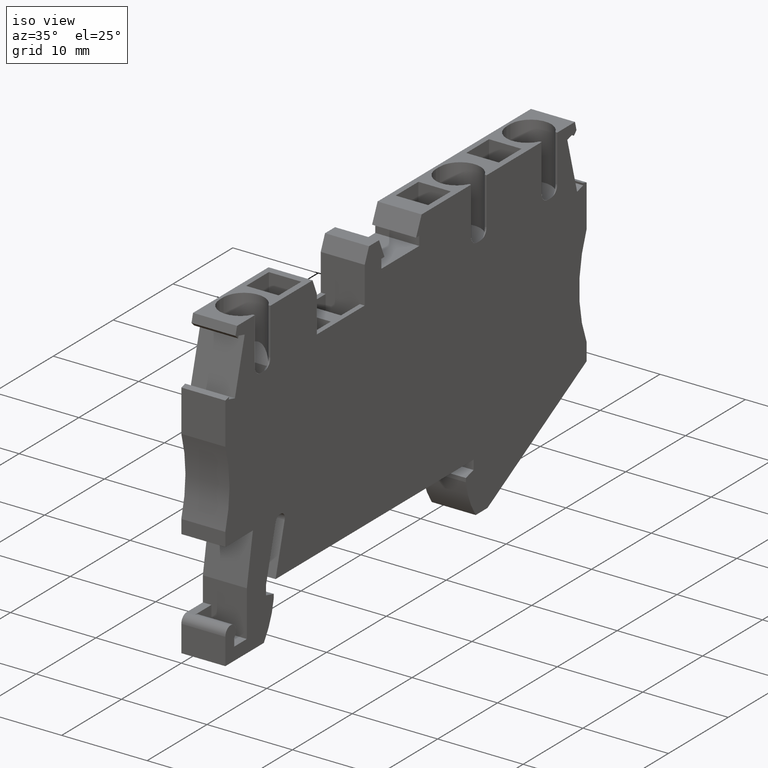
[diagram: clean part render]
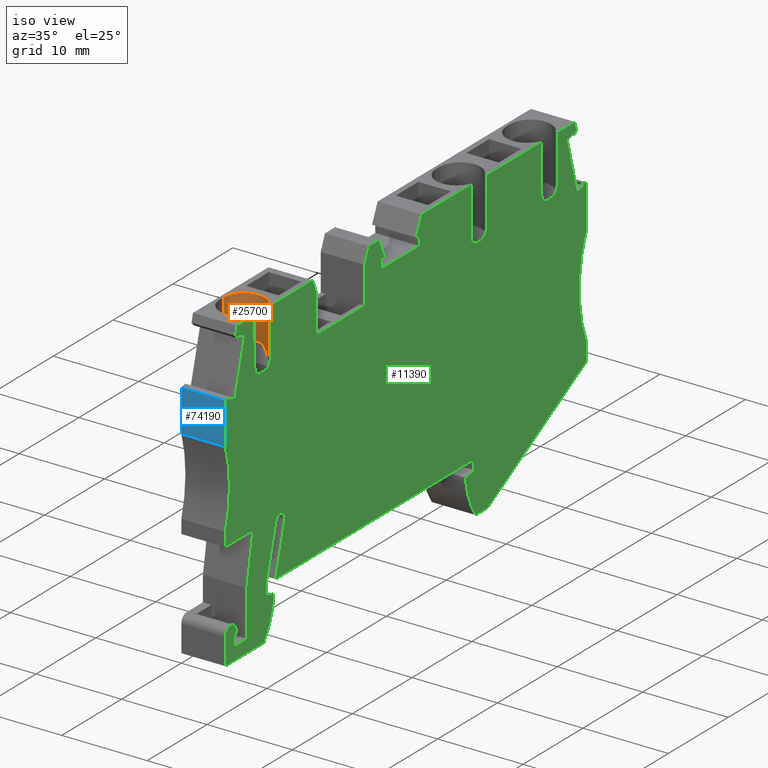
[diagram: same view with three faces highlighted in distinct colors, each labeled with its STEP entity id]
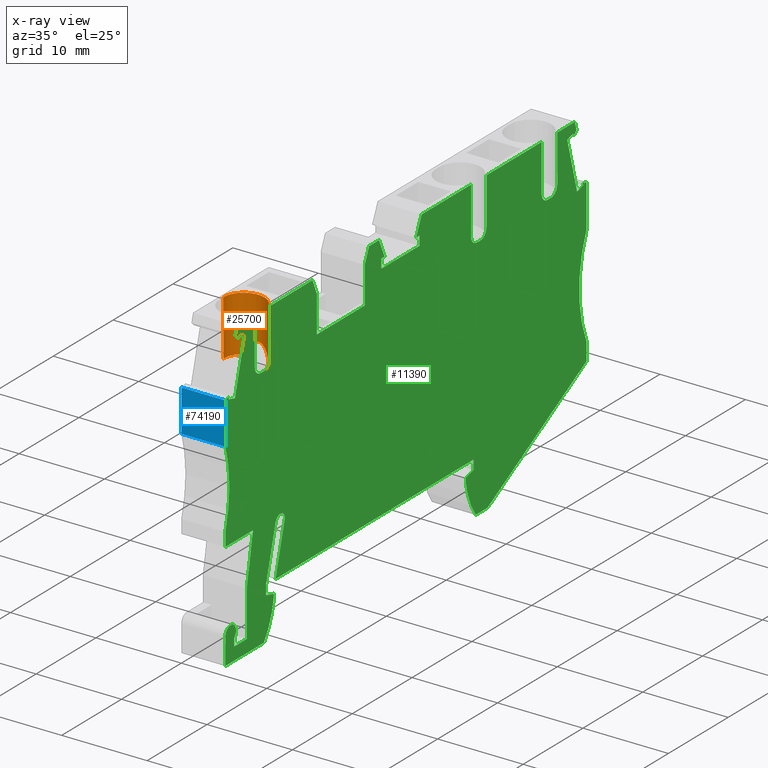
[diagram: x-ray of the same camera — body ghosted, the three highlighted faces saturated]
A machine part, iso view with three faces highlighted in distinct colors.
The next image is the same camera in x-ray (body ghosted, the three faces saturated) — at least one of them is partly hidden behind the body in this view.
Their STEP definitions:

[orange] entity #25700 — the highlighted cylindrical surface (edge-blend (fillet) strip) has radius 2.4 mm, axis along (0, -0, -1).
#5390=CARTESIAN_POINT('',(-15.8428327783273,-15.649999999976,
53.6699999999864));
#5400=VERTEX_POINT('',#5390);
#22410=CARTESIAN_POINT('',(-14.8428327783256,-9.15000000000138,
53.451742422914));
#22420=VERTEX_POINT('',#22410);
#22450=CARTESIAN_POINT('',(-15.8428327783247,-9.15000000000125,
51.2699999999864));
#22460=DIRECTION('',(1.1728118476384E-13,1.,-5.53767733690667E-25));
#22470=DIRECTION('',(-1.,1.1728118476384E-13,-4.0985636225261E-13));
#22480=AXIS2_PLACEMENT_3D('',#22450,#22460,#22470);
#22490=CIRCLE('',#22480,2.4);
#22500=CARTESIAN_POINT('',(-15.8428327783216,-9.15000000000125,
48.8699999999864));
#22510=VERTEX_POINT('',#22500);
#22520=EDGE_CURVE('',#22420,#22510,#22490,.T.);
#24310=CARTESIAN_POINT('',(-15.8428327783244,-6.99569600000156,
51.2699999999864));
#24320=DIRECTION('',(-1.1728118476384E-13,-1.,5.53767733690667E-25));
#24330=DIRECTION('',(-1.,1.1728118476384E-13,-4.0985636225261E-13));
#24340=AXIS2_PLACEMENT_3D('',#24310,#24320,#24330);
#24350=CYLINDRICAL_SURFACE('',#24340,2.4);
#24360=CARTESIAN_POINT('',(-15.8428327783243,-6.99569600000153,
51.2699999999719));
#24370=DIRECTION('',(-1.17225673612609E-13,-1.,-1.46035561436885E-15));
#24380=DIRECTION('',(-1.,1.17225673612609E-13,-1.25291079088555E-12));
#24390=AXIS2_PLACEMENT_3D('',#24360,#24370,#24380);
#24400=CYLINDRICAL_SURFACE('',#24390,2.4);
#24410=CARTESIAN_POINT('',(-15.8428327783283,-14.6500000000011,
53.6699999999719));
#24420=DIRECTION('',(-1.25291079088555E-12,-1.46035561422272E-15,1.));
#24430=DIRECTION('',(0.992546151641322,-0.121869343405148,
1.2433938112635E-12));
#24440=AXIS2_PLACEMENT_3D('',#24410,#24420,#24430);
#24450=CYLINDRICAL_SURFACE('',#24440,1.);
#24460=CARTESIAN_POINT('',(-14.842832778328,-14.6500000000012,
53.4517424229003));
#24470=CARTESIAN_POINT('',(-14.842832778328,-14.666471282773,
53.4517424229003));
#24480=CARTESIAN_POINT('',(-14.8432399993202,-14.6829810434903,
53.4519292120504));
#24490=CARTESIAN_POINT('',(-14.8440585453993,-14.6994977942725,
53.452303835748));
#24500=CARTESIAN_POINT('',(-14.8448770865464,-14.7160144455373,
53.4526784571884));
#24510=CARTESIAN_POINT('',(-14.8461069717734,-14.7325376962511,
53.4532409214561));
#24520=CARTESIAN_POINT('',(-14.847748672488,-14.7490334403359,
53.4539889244653));
#24530=CARTESIAN_POINT('',(-14.8493903673646,-14.7655291257619,
53.4547369248146));
#24540=CARTESIAN_POINT('',(-14.8514438585297,-14.7819969001562,
53.4556704484118));
#24550=CARTESIAN_POINT('',(-14.853905588736,-14.7984015285837,
53.4567837144007));
#24560=CARTESIAN_POINT('',(-14.8563673156173,-14.8148061348542,
53.457896978886));
#24570=CARTESIAN_POINT('',(-14.8592372275178,-14.8311471984562,
53.459189948383));
#24580=CARTESIAN_POINT('',(-14.862507678296,-14.8473897116055,
53.460653486549));
#24590=CARTESIAN_POINT('',(-14.8657781312388,-14.8636322355053,
53.4621170256838));
#24600=CARTESIAN_POINT('',(-14.8694490398111,-14.8797758371678,
53.4637510781024));
#24610=CARTESIAN_POINT('',(-14.8735088995492,-14.8957869362472,
53.4655434903256));
#24620=CARTESIAN_POINT('',(-14.8775687697036,-14.9117980764059,
53.4673359071475));
#24630=CARTESIAN_POINT('',(-14.8820174852838,-14.9276763796765,
53.4692866154831));
#24640=CARTESIAN_POINT('',(-14.8868401648294,-14.9433907342382,
53.4713809581301));
#24650=CARTESIAN_POINT('',(-14.8916628658337,-14.9591051587213,
53.4734753100959));
#24660=CARTESIAN_POINT('',(-14.8968594094784,-14.9746553458643,
53.4757132207565));
#24670=CARTESIAN_POINT('',(-14.9024122394675,-14.9900135439803,
53.4780781711639));
#24680=CARTESIAN_POINT('',(-14.9079644412723,-15.0053700046436,
53.4804428540275));
#24690=CARTESIAN_POINT('',(-14.913867555629,-15.0205262784647,
53.4829324523513));
#24700=CARTESIAN_POINT('',(-14.9201574145161,-15.0355777133282,
53.4855518890098));
#24710=CARTESIAN_POINT('',(-14.9327302352256,-15.0656640785959,
53.4907878900169));
#24720=CARTESIAN_POINT('',(-14.946793695893,-15.0951736181587,
53.4965198229605));
#24730=CARTESIAN_POINT('',(-14.9622639722027,-15.1239183238495,
53.5026214586353));
#24740=CARTESIAN_POINT('',(-14.9777340815194,-15.152662719257,
53.5087230284463));
#24750=CARTESIAN_POINT('',(-14.9946084880216,-15.1806372213895,
53.5151926650721));
#24760=CARTESIAN_POINT('',(-15.0127674134997,-15.2076661098851,
53.5218862071586));
#24770=CARTESIAN_POINT('',(-15.0309264107747,-15.2346951052479,
53.5285797757101));
#24780=CARTESIAN_POINT('',(-15.0503669502138,-15.2607742728301,
53.535495542101));
#24790=CARTESIAN_POINT('',(-15.0709412492593,-15.2857542507553,
53.5424839861325));
#24800=CARTESIAN_POINT('',(-15.0812282993466,-15.2982441189899,
53.5459781743731));
#24810=CARTESIAN_POINT('',(-15.0917981190266,-15.3104592943325,
53.5494904282925));
#24820=CARTESIAN_POINT('',(-15.1026303698325,-15.3223841122891,
53.5530024954724));
#24830=CARTESIAN_POINT('',(-15.1134549482289,-15.3343004839784,
53.5565120750789));
#24840=CARTESIAN_POINT('',(-15.124566112838,-15.3459554076908,
53.5600296859279));
#24850=CARTESIAN_POINT('',(-15.1359925944872,-15.3573732780573,
53.5635511667244));
#24860=CARTESIAN_POINT('',(-15.1588386202466,-15.3802020864796,
53.5705919902655));
#24870=CARTESIAN_POINT('',(-15.1828876994499,-15.4020170868886,
53.5776288969683));
#24880=CARTESIAN_POINT('',(-15.2080104518058,-15.4226581480607,
53.5845195211146));
#24890=CARTESIAN_POINT('',(-15.2331330106552,-15.4432990502462,
53.5914100921861));
#24900=CARTESIAN_POINT('',(-15.2593255062768,-15.4627626409377,
53.5981528035176));
#24910=CARTESIAN_POINT('',(-15.2864270457847,-15.480910741792,
53.6046118865155));
#24920=CARTESIAN_POINT('',(-15.3135287525472,-15.4990589546456,
53.6110710093751));
#24930=CARTESIAN_POINT('',(-15.3415348709755,-15.5158886470158,
53.6172450041962));
#24940=CARTESIAN_POINT('',(-15.3702648050837,-15.5312942248023,
53.623014983066));
#24950=CARTESIAN_POINT('',(-15.3846296095195,-15.5389969264963,
53.6258999398415));
#24960=CARTESIAN_POINT('',(-15.3991746653062,-15.5463438892439,
53.6286841161777));
#24970=CARTESIAN_POINT('',(-15.4138766570963,-15.5533253268118,
53.6313548327025));
#24980=CARTESIAN_POINT('',(-15.4285753027124,-15.5603051754043,
53.634024941372));
#24990=CARTESIAN_POINT('',(-15.4434330494094,-15.5669222311258,
53.6365825548305));
#25000=CARTESIAN_POINT('',(-15.4585046792508,-15.5731965729256,
53.6390276300897));
#25010=CARTESIAN_POINT('',(-15.4735699912779,-15.57946828461,
53.641471680408));
#25020=CARTESIAN_POINT('',(-15.4888216175574,-15.5853845881527,
53.6437983060534));
#25030=CARTESIAN_POINT('',(-15.5042319069353,-15.590930098304,
53.6459944128218));
#25040=CARTESIAN_POINT('',(-15.5196421830021,-15.5964756036651,
53.6481905176932));
#25050=CARTESIAN_POINT('',(-15.5352108625233,-15.6016502137292,
53.6502560521529));
#25060=CARTESIAN_POINT('',(-15.550908522222,-15.6064414402875,
53.6521797221378));
#25070=CARTESIAN_POINT('',(-15.5666061933168,-15.6112326703241,
53.6541033935192));
#25080=CARTESIAN_POINT('',(-15.5824325635456,-15.6156404330056,
53.655885157376));
#25090=CARTESIAN_POINT('',(-15.5983572975605,-15.6196554745401,
53.657515809198));
#25100=CARTESIAN_POINT('',(-15.6142835287089,-15.623670893541,
53.6591466143226));
#25110=CARTESIAN_POINT('',(-15.6303014543461,-15.6272921614988,
53.6606257164565));
#25120=CARTESIAN_POINT('',(-15.6463990428669,-15.6305171021328,
53.6619476974715));
#25130=CARTESIAN_POINT('',(-15.662503770911,-15.6337434730767,
53.6632702648051));
#25140=CARTESIAN_POINT('',(-15.6787190016653,-15.6365789616069,
53.6644379566525));
#25150=CARTESIAN_POINT('',(-15.695011614754,-15.639014106877,
53.6654433626086));
#25160=CARTESIAN_POINT('',(-15.7113042084553,-15.6414492492495,
53.6664487673684));
#25170=CARTESIAN_POINT('',(-15.7276738327109,-15.6434839861876,
53.6672918543765));
#25180=CARTESIAN_POINT('',(-15.7440860593632,-15.6451125994057,
53.6679676989816));
#25190=CARTESIAN_POINT('',(-15.776927372171,-15.648371498839,
53.6693200824552));
#25200=CARTESIAN_POINT('',(-15.8098638014034,-15.6500000000012,
53.6699999999719));
#25210=CARTESIAN_POINT('',(-15.842832778329,-15.6500000000011,
53.6699999999719));
#25220=B_SPLINE_CURVE_WITH_KNOTS('',3,(#24460,#24470,#24480,#24490,
#24500,#24510,#24520,#24530,#24540,#24550,#24560,#24570,#24580,#24590,
#24600,#24610,#24620,#24630,#24640,#24650,#24660,#24670,#24680,#24690,
#24700,#24710,#24720,#24730,#24740,#24750,#24760,#24770,#24780,#24790,
#24800,#24810,#24820,#24830,#24840,#24850,#24860,#24870,#24880,#24890,
#24900,#24910,#24920,#24930,#24940,#24950,#24960,#24970,#24980,#24990,
#25000,#25010,#25020,#25030,#25040,#25050,#25060,#25070,#25080,#25090,
#25100,#25110,#25120,#25130,#25140,#25150,#25160,#25170,#25180,#25190,
#25200,#25210),.UNSPECIFIED.,.F.,.F.,(4,3,3,3,3,3,3,3,3,3,3,3,3,3,3,3,3,
3,3,3,3,3,3,3,3,4),(0.,0.0495222692515638,0.0992298942329463,
0.149064989412265,0.198959033159942,0.248837074435115,0.298621508203803,
0.348235771127588,0.397706633074591,0.497087658472475,0.596803861500545,
0.696371962687592,0.745940559031713,0.795428028473211,0.894905849219943,
0.994675469480015,1.09424413440872,1.14381654088101,1.1932727156862,
1.24281586857668,1.2923952060023,1.3419434206789,1.39140236455024,
1.4408813707149,1.49040354021155,1.58933923289458),.UNSPECIFIED.);
#25230=SURFACE_CURVE('',#25220,(#24400,#24450),.CURVE_3D.);
#25240=CARTESIAN_POINT('',(-14.842832778328,-14.6500000000012,
53.4517424229003));
#25250=VERTEX_POINT('',#25240);
#25260=EDGE_CURVE('',#25250,#5400,#25230,.T.);
#25270=ORIENTED_EDGE('',*,*,#25260,.F.);
#25280=CARTESIAN_POINT('',(-15.8428327783243,-15.6499999999994,
51.2699999999719));
#25290=DIRECTION('',(1.38777878078145E-17,-1.,-1.46035561422197E-15));
#25300=DIRECTION('',(-1.,-4.30211422042248E-16,-1.25291079088555E-12));
#25310=AXIS2_PLACEMENT_3D('',#25280,#25290,#25300);
#25320=CIRCLE('',#25310,2.40000000000103);
#25330=CARTESIAN_POINT('',(-14.1549474690414,-15.6500000000002,
52.9761779457629));
#25340=VERTEX_POINT('',#25330);
#25350=EDGE_CURVE('',#25340,#5400,#25320,.T.);
#25360=ORIENTED_EDGE('',*,*,#25350,.T.);
#25370=CARTESIAN_POINT('',(-15.8428327783257,-19.2696817267914,
51.2699999999719));
#25380=DIRECTION('',(0.906307787036651,-0.422618261740698,
1.13490563329062E-12));
#25390=DIRECTION('',(-0.422618261740698,-0.906307787036651,
-5.30826512225228E-13));
#25400=AXIS2_PLACEMENT_3D('',#25370,#25380,#25390);
#25410=ELLIPSE('',#25400,5.67888379956745,2.4);
#25420=CARTESIAN_POINT('',(-14.1549474690374,-15.6500000000006,
49.5638220541849));
#25430=VERTEX_POINT('',#25420);
#25440=EDGE_CURVE('',#25430,#25340,#25410,.T.);
#25450=ORIENTED_EDGE('',*,*,#25440,.T.);
#25460=CARTESIAN_POINT('',(-15.8428327783253,-15.6499999999997,
51.2699999999719));
#25470=DIRECTION('',(1.17225673612609E-13,1.,1.46035561436885E-15));
#25480=DIRECTION('',(-1.,1.19959597810748E-13,-1.25291079088555E-12));
#25490=AXIS2_PLACEMENT_3D('',#25460,#25470,#25480);
#25500=CIRCLE('',#25490,2.4);
#25510=CARTESIAN_POINT('',(-15.8428327783223,-15.6500000000012,
48.8699999999719));
#25520=VERTEX_POINT('',#25510);
#25530=EDGE_CURVE('',#25430,#25520,#25500,.T.);
#25540=ORIENTED_EDGE('',*,*,#25530,.F.);
#25550=CARTESIAN_POINT('',(-15.8428327783213,-6.99569600000152,
48.8699999999719));
#25560=DIRECTION('',(-1.17225673612609E-13,-1.,-1.46035561436885E-15));
#25570=VECTOR('',#25560,1.);
#25580=LINE('',#25550,#25570);
#25590=EDGE_CURVE('',#22510,#25520,#25580,.T.);
#25600=ORIENTED_EDGE('',*,*,#25590,.T.);
#25610=ORIENTED_EDGE('',*,*,#22520,.T.);
#25620=CARTESIAN_POINT('',(-14.8428327783271,-6.99569600000164,
53.4517424229003));
#25630=DIRECTION('',(-1.17225673612609E-13,-1.,-1.46035561436885E-15));
#25640=VECTOR('',#25630,1.);
#25650=LINE('',#25620,#25640);
#25660=EDGE_CURVE('',#22420,#25250,#25650,.T.);
#25670=ORIENTED_EDGE('',*,*,#25660,.F.);
#25680=EDGE_LOOP('',(#25670,#25610,#25600,#25540,#25450,#25360,#25270));
#25690=FACE_OUTER_BOUND('',#25680,.T.);
#25700=ADVANCED_FACE('',(#25690),#24350,.F.);

[blue] entity #74190 — the highlighted planar face has unit normal (-0, -1, -0).
#600=CARTESIAN_POINT('',(-22.3678327783232,-16.3000793279225,
48.5199999999837));
#610=VERTEX_POINT('',#600);
#640=CARTESIAN_POINT('',(-22.3678327783232,-39.6931569607141,
48.5199999999837));
#650=DIRECTION('',(-2.0122792321331E-15,1.,-6.02658177152644E-25));
#660=VECTOR('',#650,1.);
#670=LINE('',#640,#660);
#680=CARTESIAN_POINT('',(-22.3678327783232,-21.2000000000028,
48.5199999999837));
#690=VERTEX_POINT('',#680);
#700=EDGE_CURVE('',#690,#610,#670,.T.);
#10710=CARTESIAN_POINT('',(-22.3678327783253,-21.2000000000028,
53.6699999999837));
#10720=VERTEX_POINT('',#10710);
#10750=CARTESIAN_POINT('',(-22.3678327783253,-39.6931569607141,
53.6699999999837));
#10760=DIRECTION('',(-2.0122792321331E-15,1.,-6.02658177152644E-25));
#10770=VECTOR('',#10760,1.);
#10780=LINE('',#10750,#10770);
#10790=CARTESIAN_POINT('',(-22.3678327783253,-16.3000793279225,
53.6699999999837));
#10800=VERTEX_POINT('',#10790);
#10810=EDGE_CURVE('',#10720,#10800,#10780,.T.);
#73840=CARTESIAN_POINT('',(-22.3678327783253,-21.2000000000028,
53.6699999999837));
#73850=DIRECTION('',(-4.0985636225261E-13,6.0174940938983E-25,1.));
#73860=VECTOR('',#73850,1.);
#73870=LINE('',#73840,#73860);
#73880=EDGE_CURVE('',#690,#10720,#73870,.T.);
#74030=CARTESIAN_POINT('',(-22.3678327783253,-19.2393498779175,
53.6699999999837));
#74040=DIRECTION('',(-1.,-2.0122792321331E-15,-4.0985636225261E-13));
#74050=DIRECTION('',(-2.0122792321331E-15,1.,-6.02658177152644E-25));
#74060=AXIS2_PLACEMENT_3D('',#74030,#74040,#74050);
#74070=PLANE('',#74060);
#74080=CARTESIAN_POINT('',(-22.3678327783253,-16.3000793279225,
53.6699999999837));
#74090=DIRECTION('',(4.0985636225261E-13,-6.0174940938983E-25,-1.));
#74100=VECTOR('',#74090,1.);
#74110=LINE('',#74080,#74100);
#74120=EDGE_CURVE('',#10800,#610,#74110,.T.);
#74130=ORIENTED_EDGE('',*,*,#74120,.T.);
#74140=ORIENTED_EDGE('',*,*,#10810,.T.);
#74150=ORIENTED_EDGE('',*,*,#73880,.T.);
#74160=ORIENTED_EDGE('',*,*,#700,.F.);
#74170=EDGE_LOOP('',(#74160,#74150,#74140,#74130));
#74180=FACE_OUTER_BOUND('',#74170,.T.);
#74190=ADVANCED_FACE('',(#74180),#74070,.T.);

[green] entity #11390 — the highlighted planar face has unit normal (1, -0, 0).
#4950=CARTESIAN_POINT('',(3.5299232216756,-14.8667820000014,53.67));
#4960=DIRECTION('',(0.,-0.,1.));
#4970=DIRECTION('',(0.,1.,0.));
#4980=AXIS2_PLACEMENT_3D('',#4950,#4960,#4970);
#4990=PLANE('',#4980);
#5000=CARTESIAN_POINT('',(-28.393411119262,-38.9533089699361,
53.6699999999813));
#5010=DIRECTION('',(-0.258819045102936,-0.965925826288957,
-1.06078632307002E-13));
#5020=VECTOR('',#5010,1.);
#5030=LINE('',#5000,#5020);
#5040=CARTESIAN_POINT('',(-20.4076385489791,-9.15000000000171,
53.6699999999845));
#5050=VERTEX_POINT('',#5040);
#5060=CARTESIAN_POINT('',(-20.6655984466239,-10.1127194443259,
53.6699999999844));
#5070=VERTEX_POINT('',#5060);
#5080=EDGE_CURVE('',#5050,#5070,#5030,.T.);
#5090=ORIENTED_EDGE('',*,*,#5080,.T.);
#5100=CARTESIAN_POINT('',(-30.6958559619305,-9.15000000000041,
53.6699999999803));
#5110=DIRECTION('',(-1.,1.26162968960841E-13,-4.0985636225261E-13));
#5120=VECTOR('',#5110,1.);
#5130=LINE('',#5100,#5120);
#5140=CARTESIAN_POINT('',(-17.4428327783257,-9.15000000000208,
53.6699999999857));
#5150=VERTEX_POINT('',#5140);
#5160=EDGE_CURVE('',#5150,#5050,#5130,.T.);
#5170=ORIENTED_EDGE('',*,*,#5160,.T.);
#5180=CARTESIAN_POINT('',(-17.4428327783313,-40.2978709231602,
53.6699999999857));
#5190=DIRECTION('',(1.17225673612609E-13,1.,-5.53792977239634E-25));
#5200=VECTOR('',#5190,1.);
#5210=LINE('',#5180,#5200);
#5220=CARTESIAN_POINT('',(-17.4428327783264,-14.650000000001,
53.6699999999857));
#5230=VERTEX_POINT('',#5220);
#5240=EDGE_CURVE('',#5230,#5150,#5210,.T.);
#5250=ORIENTED_EDGE('',*,*,#5240,.T.);
#5260=CARTESIAN_POINT('',(-16.4428327783283,-14.6500000000011,
53.6699999999861));
#5270=DIRECTION('',(-1.25291079088555E-12,-1.46035561422272E-15,1.));
#5280=DIRECTION('',(0.992546151641322,-0.121869343405148,
1.2433938112635E-12));
#5290=AXIS2_PLACEMENT_3D('',#5260,#5270,#5280);
#5300=CIRCLE('',#5290,1.);
#5310=CARTESIAN_POINT('',(-16.4428327783254,-15.6499999999752,
53.6699999999862));
#5320=VERTEX_POINT('',#5310);
#5330=EDGE_CURVE('',#5230,#5320,#5300,.T.);
#5340=ORIENTED_EDGE('',*,*,#5330,.F.);
#5350=CARTESIAN_POINT('',(-31.4939556077936,-15.6499999999532,
53.66999999998));
#5360=DIRECTION('',(-1.,1.46020695535043E-12,-4.0985636225261E-13));
#5370=VECTOR('',#5360,1.);
#5380=LINE('',#5350,#5370);
#5390=CARTESIAN_POINT('',(-15.8428327783273,-15.649999999976,
53.6699999999864));
#5400=VERTEX_POINT('',#5390);
#5410=EDGE_CURVE('',#5400,#5320,#5380,.T.);
#5420=ORIENTED_EDGE('',*,*,#5410,.T.);
#5430=CARTESIAN_POINT('',(-15.8428327783283,-14.6500000000011,
53.6699999999864));
#5440=DIRECTION('',(-1.25291079088555E-12,-1.46035561422272E-15,1.));
#5450=DIRECTION('',(0.992546151641322,-0.121869343405148,
1.2433938112635E-12));
#5460=AXIS2_PLACEMENT_3D('',#5430,#5440,#5450);
#5470=CIRCLE('',#5460,1.);
#5480=CARTESIAN_POINT('',(-14.8428327783283,-14.6500000000013,
53.6699999999876));
#5490=VERTEX_POINT('',#5480);
#5500=EDGE_CURVE('',#5400,#5490,#5470,.T.);
#5510=ORIENTED_EDGE('',*,*,#5500,.F.);
#5520=CARTESIAN_POINT('',(-14.8428327783313,-40.6171107815077,
53.6699999999868));
#5530=DIRECTION('',(-1.17225673612609E-13,-1.,5.53792977239634E-25));
#5540=VECTOR('',#5530,1.);
#5550=LINE('',#5520,#5540);
#5560=CARTESIAN_POINT('',(-14.8428327783257,-9.15000000000241,
53.6699999999868));
#5570=VERTEX_POINT('',#5560);
#5580=EDGE_CURVE('',#5570,#5490,#5550,.T.);
#5590=ORIENTED_EDGE('',*,*,#5580,.T.);
#5600=CARTESIAN_POINT('',(-30.6958559619305,-9.15000000000041,
53.6699999999803));
#5610=DIRECTION('',(-1.,1.26162968960841E-13,-4.0985636225261E-13));
#5620=VECTOR('',#5610,1.);
#5630=LINE('',#5600,#5620);
#5640=CARTESIAN_POINT('',(-7.7863324976067,-9.15000000000331,
53.6699999999897));
#5650=VERTEX_POINT('',#5640);
#5660=EDGE_CURVE('',#5650,#5570,#5630,.T.);
#5670=ORIENTED_EDGE('',*,*,#5660,.T.);
#5680=CARTESIAN_POINT('',(6.62732765293133,-43.2533150025752,
53.6699999999956));
#5690=DIRECTION('',(-0.389303997086923,0.921109330021223,
-1.59558720057001E-13));
#5700=VECTOR('',#5690,1.);
#5710=LINE('',#5680,#5700);
#5720=CARTESIAN_POINT('',(-7.06783277832524,-10.8500000000033,
53.66999999999));
#5730=VERTEX_POINT('',#5720);
#5740=EDGE_CURVE('',#5730,#5650,#5710,.T.);
#5750=ORIENTED_EDGE('',*,*,#5740,.T.);
#5760=CARTESIAN_POINT('',(-7.06783277832513,-41.5717607425285,
53.66999999999));
#5770=DIRECTION('',(-2.72004641033163E-15,1.,-6.02948477965766E-25));
#5780=VECTOR('',#5770,1.);
#5790=LINE('',#5760,#5780);
#5800=CARTESIAN_POINT('',(-7.0678327783252,-15.1500000000016,
53.66999999999));
#5810=VERTEX_POINT('',#5800);
#5820=EDGE_CURVE('',#5810,#5730,#5790,.T.);
#5830=ORIENTED_EDGE('',*,*,#5820,.T.);
#5840=CARTESIAN_POINT('',(-31.4325633273481,-15.1500000000016,
53.66999999998));
#5850=DIRECTION('',(-1.,4.16333634234434E-17,-4.0985636225261E-13));
#5860=VECTOR('',#5850,1.);
#5870=LINE('',#5840,#5860);
#5880=CARTESIAN_POINT('',(0.932167221674504,-15.1500000000016,
53.6699999999933));
#5890=VERTEX_POINT('',#5880);
#5900=EDGE_CURVE('',#5890,#5810,#5870,.T.);
#5910=ORIENTED_EDGE('',*,*,#5900,.T.);
#5920=CARTESIAN_POINT('',(0.932167221674653,-42.5540372297518,
53.6699999999933));
#5930=DIRECTION('',(-5.49560397189452E-15,1.,-6.04078126782042E-25));
#5940=VECTOR('',#5930,1.);
#5950=LINE('',#5920,#5940);
#5960=CARTESIAN_POINT('',(0.932167221674483,-10.8500000000035,
53.6699999999933));
#5970=VERTEX_POINT('',#5960);
#5980=EDGE_CURVE('',#5890,#5970,#5950,.T.);
#5990=ORIENTED_EDGE('',*,*,#5980,.F.);
#6000=CARTESIAN_POINT('',(-11.8063846804775,-40.9899397279071,
53.669999999988));
#6010=DIRECTION('',(-0.389303997086923,-0.921109330021223,
-1.59558720055893E-13));
#6020=VECTOR('',#6010,1.);
#6030=LINE('',#6000,#6020);
#6040=CARTESIAN_POINT('',(1.65066694095598,-9.15000000000341,
53.6699999999936));
#6050=VERTEX_POINT('',#6040);
#6060=EDGE_CURVE('',#6050,#5970,#6030,.T.);
#6070=ORIENTED_EDGE('',*,*,#6060,.T.);
#6080=CARTESIAN_POINT('',(-30.6958559619314,-9.15000000000733,
53.6699999999803));
#6090=DIRECTION('',(-1.,-1.21000431896334E-13,-4.0985636225261E-13));
#6100=VECTOR('',#6090,1.);
#6110=LINE('',#6080,#6100);
#6120=CARTESIAN_POINT('',(3.32251284670075,-9.15000000000321,
53.6699999999942));
#6130=VERTEX_POINT('',#6120);
#6140=EDGE_CURVE('',#6130,#6050,#6110,.T.);
#6150=ORIENTED_EDGE('',*,*,#6140,.T.);
#6160=CARTESIAN_POINT('',(18.975682371097,-44.7695023145185,
53.6700000000007));
#6170=DIRECTION('',(0.402320578211921,-0.915498854366966,
1.64893648645855E-13));
#6180=VECTOR('',#6170,1.);
#6190=LINE('',#6160,#6180);
#6200=CARTESIAN_POINT('',(4.24756568876143,-11.2550000000016,
53.6699999999946));
#6210=VERTEX_POINT('',#6200);
#6220=EDGE_CURVE('',#6130,#6210,#6190,.T.);
#6230=ORIENTED_EDGE('',*,*,#6220,.F.);
#6240=CARTESIAN_POINT('',(-30.9543174626313,-11.2550000000016,
53.6699999999802));
#6250=DIRECTION('',(1.,-4.16333634234434E-17,4.0985636225261E-13));
#6260=VECTOR('',#6250,1.);
#6270=LINE('',#6240,#6260);
#6280=CARTESIAN_POINT('',(3.71966722167584,-11.2550000000016,
53.6699999999944));
#6290=VERTEX_POINT('',#6280);
#6300=EDGE_CURVE('',#6290,#6210,#6270,.T.);
#6310=ORIENTED_EDGE('',*,*,#6300,.T.);
#6320=CARTESIAN_POINT('',(3.7196672216758,-42.8962991932687,
53.6699999999944));
#6330=DIRECTION('',(4.16333634234434E-17,1.,-6.01812518262247E-25));
#6340=VECTOR('',#6330,1.);
#6350=LINE('',#6320,#6340);
#6360=CARTESIAN_POINT('',(3.7196672216758,-12.3250000000012,
53.6699999999944));
#6370=VERTEX_POINT('',#6360);
#6380=EDGE_CURVE('',#6370,#6290,#6350,.T.);
#6390=ORIENTED_EDGE('',*,*,#6380,.T.);
#6400=CARTESIAN_POINT('',(-31.0856969427971,-12.3249999999992,
53.6699999999801));
#6410=DIRECTION('',(-1.,5.80230308244722E-14,-4.0985636225261E-13));
#6420=VECTOR('',#6410,1.);
#6430=LINE('',#6400,#6420);
#6440=CARTESIAN_POINT('',(10.0446672216759,-12.3250000000016,
53.669999999997));
#6450=VERTEX_POINT('',#6440);
#6460=EDGE_CURVE('',#6450,#6370,#6430,.T.);
#6470=ORIENTED_EDGE('',*,*,#6460,.T.);
#6480=CARTESIAN_POINT('',(10.0446672216759,-43.6729115409796,
53.669999999997));
#6490=DIRECTION('',(-4.16333634234434E-17,-1.,6.01812518262247E-25));
#6500=VECTOR('',#6490,1.);
#6510=LINE('',#6480,#6500);
#6520=CARTESIAN_POINT('',(10.0446672216759,-11.2550000000016,
53.669999999997));
#6530=VERTEX_POINT('',#6520);
#6540=EDGE_CURVE('',#6530,#6450,#6510,.T.);
#6550=ORIENTED_EDGE('',*,*,#6540,.T.);
#6560=CARTESIAN_POINT('',(-30.9543174626313,-11.2550000000016,
53.6699999999802));
#6570=DIRECTION('',(1.,-4.16333634234434E-17,4.0985636225261E-13));
#6580=VECTOR('',#6570,1.);
#6590=LINE('',#6560,#6580);
#6600=CARTESIAN_POINT('',(9.51676875458892,-11.2550000000016,
53.6699999999968));
#6610=VERTEX_POINT('',#6600);
#6620=EDGE_CURVE('',#6610,#6530,#6590,.T.);
#6630=ORIENTED_EDGE('',*,*,#6620,.T.);
#6640=CARTESIAN_POINT('',(-3.97307229660436,-41.9517495493763,
53.6699999999913));
#6650=DIRECTION('',(0.402320578212711,0.915498854366618,
1.64893648645078E-13));
#6660=VECTOR('',#6650,1.);
#6670=LINE('',#6640,#6660);
#6680=CARTESIAN_POINT('',(10.4418215966517,-9.15000000000317,
53.6699999999972));
#6690=VERTEX_POINT('',#6680);
#6700=EDGE_CURVE('',#6610,#6690,#6670,.T.);
#6710=ORIENTED_EDGE('',*,*,#6700,.F.);
#6720=CARTESIAN_POINT('',(-30.6958559619309,-9.1500000000032,
53.6699999999803));
#6730=DIRECTION('',(1.,-4.16333634234434E-17,4.0985636225261E-13));
#6740=VECTOR('',#6730,1.);
#6750=LINE('',#6720,#6740);
#6760=CARTESIAN_POINT('',(18.7071672216749,-9.1500000000032,
53.6700000000006));
#6770=VERTEX_POINT('',#6760);
#6780=EDGE_CURVE('',#6690,#6770,#6750,.T.);
#6790=ORIENTED_EDGE('',*,*,#6780,.F.);
#6800=CARTESIAN_POINT('',(18.7071672216812,-44.7365327998017,
53.6700000000006));
#6810=DIRECTION('',(1.17142406885762E-13,-1.,6.49850991946586E-25));
#6820=VECTOR('',#6810,1.);
#6830=LINE('',#6800,#6820);
#6840=CARTESIAN_POINT('',(18.7071672216777,-14.6500000000032,
53.6700000000014));
#6850=VERTEX_POINT('',#6840);
#6860=EDGE_CURVE('',#6770,#6850,#6830,.T.);
#6870=ORIENTED_EDGE('',*,*,#6860,.F.);
#6880=CARTESIAN_POINT('',(19.7071672216777,-14.6500000000031,
53.670000000001));
#6890=DIRECTION('',(-4.33198066380333E-13,1.46035561422282E-15,-1.));
#6900=DIRECTION('',(-0.992546151641322,-0.121869343405147,
4.29791101104418E-13));
#6910=AXIS2_PLACEMENT_3D('',#6880,#6890,#6900);
#6920=CIRCLE('',#6910,1.);
#6930=CARTESIAN_POINT('',(19.7071672216767,-15.6500000000031,
53.670000000001));
#6940=VERTEX_POINT('',#6930);
#6950=EDGE_CURVE('',#6940,#6850,#6920,.T.);
#6960=ORIENTED_EDGE('',*,*,#6950,.T.);
#6970=CARTESIAN_POINT('',(-31.4939556078089,-15.6500000000779,
53.66999999998));
#6980=DIRECTION('',(1.,1.46012368862358E-12,4.0985636225261E-13));
#6990=VECTOR('',#6980,1.);
#7000=LINE('',#6970,#6990);
#7010=CARTESIAN_POINT('',(20.3071672216767,-15.6500000000031,
53.6700000000012));
#7020=VERTEX_POINT('',#7010);
#7030=EDGE_CURVE('',#6940,#7020,#7000,.T.);
#7040=ORIENTED_EDGE('',*,*,#7030,.F.);
#7050=CARTESIAN_POINT('',(20.3071672216777,-14.6500000000031,
53.6700000000012));
#7060=DIRECTION('',(-4.33198066380333E-13,1.46035561422282E-15,-1.));
#7070=DIRECTION('',(-0.992546151641322,-0.121869343405147,
4.29791101104418E-13));
#7080=AXIS2_PLACEMENT_3D('',#7050,#7060,#7070);
#7090=CIRCLE('',#7080,1.);
#7100=CARTESIAN_POINT('',(21.3071672216777,-14.650000000003,
53.6700000000008));
#7110=VERTEX_POINT('',#7100);
#7120=EDGE_CURVE('',#7110,#7020,#7090,.T.);
#7130=ORIENTED_EDGE('',*,*,#7120,.T.);
#7140=CARTESIAN_POINT('',(21.3071672216812,-45.0557726581492,
53.6700000000016));
#7150=DIRECTION('',(-1.17142406885762E-13,1.,-6.49850991946586E-25));
#7160=VECTOR('',#7150,1.);
#7170=LINE('',#7140,#7160);
#7180=CARTESIAN_POINT('',(21.3071672216749,-9.150000000003,
53.6700000000016));
#7190=VERTEX_POINT('',#7180);
#7200=EDGE_CURVE('',#7110,#7190,#7170,.T.);
#7210=ORIENTED_EDGE('',*,*,#7200,.F.);
#7220=CARTESIAN_POINT('',(-30.7553307158945,-9.1500000000032,
53.6699999999803));
#7230=DIRECTION('',(-1.,4.16333634234434E-17,-4.0985636225261E-13));
#7240=VECTOR('',#7230,1.);
#7250=LINE('',#7220,#7240);
#7260=CARTESIAN_POINT('',(30.5071672216749,-9.15000000000332,
53.6700000000054));
#7270=VERTEX_POINT('',#7260);
#7280=EDGE_CURVE('',#7270,#7190,#7250,.T.);
#7290=ORIENTED_EDGE('',*,*,#7280,.T.);
#7300=CARTESIAN_POINT('',(30.5071672216814,-46.185390618456,
53.6700000000054));
#7310=DIRECTION('',(1.17142406885762E-13,-1.,6.49850991946586E-25));
#7320=VECTOR('',#7310,1.);
#7330=LINE('',#7300,#7320);
#7340=CARTESIAN_POINT('',(30.5071672216756,-14.6500000000032,
53.6700000000054));
#7350=VERTEX_POINT('',#7340);
#7360=EDGE_CURVE('',#7270,#7350,#7330,.T.);
#7370=ORIENTED_EDGE('',*,*,#7360,.F.);
#7380=CARTESIAN_POINT('',(31.5071672216777,-14.6500000000031,
53.6700000000058));
#7390=DIRECTION('',(-4.33198066380333E-13,1.46035561422282E-15,-1.));
#7400=DIRECTION('',(-0.992546151641322,-0.121869343405147,
4.29791101104418E-13));
#7410=AXIS2_PLACEMENT_3D('',#7380,#7390,#7400);
#7420=CIRCLE('',#7410,1.);
#7430=CARTESIAN_POINT('',(31.5071672216767,-15.6500000000032,
53.6700000000058));
#7440=VERTEX_POINT('',#7430);
#7450=EDGE_CURVE('',#7440,#7350,#7420,.T.);
#7460=ORIENTED_EDGE('',*,*,#7450,.T.);
#7470=CARTESIAN_POINT('',(-31.493955607811,-15.6500000000951,
53.66999999998));
#7480=DIRECTION('',(1.,1.46012368862358E-12,4.0985636225261E-13));
#7490=VECTOR('',#7480,1.);
#7500=LINE('',#7470,#7490);
#7510=CARTESIAN_POINT('',(32.1071672216767,-15.6500000000023,
53.670000000006));
#7520=VERTEX_POINT('',#7510);
#7530=EDGE_CURVE('',#7440,#7520,#7500,.T.);
#7540=ORIENTED_EDGE('',*,*,#7530,.F.);
#7550=CARTESIAN_POINT('',(32.1071672216777,-14.6500000000031,
53.670000000006));
#7560=DIRECTION('',(-4.33198066380333E-13,1.46035561422282E-15,-1.));
#7570=DIRECTION('',(-0.992546151641322,-0.121869343405147,
4.29791101104418E-13));
#7580=AXIS2_PLACEMENT_3D('',#7550,#7560,#7570);
#7590=CIRCLE('',#7580,1.);
#7600=CARTESIAN_POINT('',(33.1071672216756,-14.650000000003,
53.6700000000065));
#7610=VERTEX_POINT('',#7600);
#7620=EDGE_CURVE('',#7610,#7520,#7590,.T.);
#7630=ORIENTED_EDGE('',*,*,#7620,.T.);
#7640=CARTESIAN_POINT('',(33.1071672216814,-46.5046304768035,
53.6700000000065));
#7650=DIRECTION('',(-1.17142406885762E-13,1.,-6.49850991946586E-25));
#7660=VECTOR('',#7650,1.);
#7670=LINE('',#7640,#7660);
#7680=CARTESIAN_POINT('',(33.1071672216749,-9.15000000000298,
53.6700000000065));
#7690=VERTEX_POINT('',#7680);
#7700=EDGE_CURVE('',#7610,#7690,#7670,.T.);
#7710=ORIENTED_EDGE('',*,*,#7700,.F.);
#7720=CARTESIAN_POINT('',(-30.6958559619309,-9.1500000000032,
53.6699999999803));
#7730=DIRECTION('',(-1.,4.16333634234434E-17,-4.0985636225261E-13));
#7740=VECTOR('',#7730,1.);
#7750=LINE('',#7720,#7740);
#7760=CARTESIAN_POINT('',(36.071972992329,-9.1500000000032,
53.6700000000077));
#7770=VERTEX_POINT('',#7760);
#7780=EDGE_CURVE('',#7770,#7690,#7750,.T.);
#7790=ORIENTED_EDGE('',*,*,#7780,.T.);
#7800=CARTESIAN_POINT('',(46.5224801796054,-48.1518237877173,
53.670000000012));
#7810=DIRECTION('',(0.258819045102926,-0.96592582628896,
1.06078632308161E-13));
#7820=VECTOR('',#7810,1.);
#7830=LINE('',#7800,#7820);
#7840=CARTESIAN_POINT('',(36.3299328899736,-10.1127194443267,
53.6700000000078));
#7850=VERTEX_POINT('',#7840);
#7860=EDGE_CURVE('',#7770,#7850,#7830,.T.);
#7870=ORIENTED_EDGE('',*,*,#7860,.F.);
#7880=CARTESIAN_POINT('',(3.56530628123557,-42.8773460529762,
53.6699999999943));
#7890=DIRECTION('',(0.707106781187503,0.707106781185593,
2.89812213061237E-13));
#7900=VECTOR('',#7890,1.);
#7910=LINE('',#7880,#7900);
#7920=CARTESIAN_POINT('',(35.8971897020815,-10.5454626322177,
53.6700000000076));
#7930=VERTEX_POINT('',#7920);
#7940=EDGE_CURVE('',#7930,#7850,#7910,.T.);
#7950=ORIENTED_EDGE('',*,*,#7940,.T.);
#7960=CARTESIAN_POINT('',(45.9551175601862,-48.0821604176192,
53.6700000000117));
#7970=DIRECTION('',(0.258819045101928,-0.965925826289227,
1.06078632307752E-13));
#7980=VECTOR('',#7970,1.);
#7990=LINE('',#7960,#7980);
#8000=CARTESIAN_POINT('',(35.8267113036055,-10.2824336682684,
53.6700000000076));
#8010=VERTEX_POINT('',#8000);
#8020=EDGE_CURVE('',#8010,#7930,#7990,.T.);
#8030=ORIENTED_EDGE('',*,*,#8020,.T.);
#8040=CARTESIAN_POINT('',(-33.1026799550066,-28.7520083907735,
53.6699999999793));
#8050=DIRECTION('',(0.9659258262891,0.258819045102404,
3.95890845368541E-13));
#8060=VECTOR('',#8050,1.);
#8070=LINE('',#8040,#8060);
#8080=CARTESIAN_POINT('',(34.7931706694752,-10.5593700465282,
53.6700000000071));
#8090=VERTEX_POINT('',#8080);
#8100=EDGE_CURVE('',#8090,#8010,#8070,.T.);
#8110=ORIENTED_EDGE('',*,*,#8100,.T.);
#8120=CARTESIAN_POINT('',(44.8096873663848,-47.9415192742283,
53.6700000000113));
#8130=DIRECTION('',(-0.258819045102705,0.965925826289019,
-1.0607863230807E-13));
#8140=VECTOR('',#8130,1.);
#8150=LINE('',#8120,#8140);
#8160=CARTESIAN_POINT('',(36.4302011297495,-16.6688508978053,
53.6700000000078));
#8170=VERTEX_POINT('',#8160);
#8180=EDGE_CURVE('',#8170,#8090,#8150,.T.);
#8190=ORIENTED_EDGE('',*,*,#8180,.T.);
#8200=CARTESIAN_POINT('',(-33.9340399848933,-35.5228924805422,
53.669999999979));
#8210=DIRECTION('',(-0.965925826288933,-0.258819045103026,
-3.95890845368473E-13));
#8220=VECTOR('',#8210,1.);
#8230=LINE('',#8200,#8220);
#8240=CARTESIAN_POINT('',(37.4637417638786,-16.3919145195451,
53.6700000000082));
#8250=VERTEX_POINT('',#8240);
#8260=EDGE_CURVE('',#8250,#8170,#8230,.T.);
#8270=ORIENTED_EDGE('',*,*,#8260,.T.);
#8280=CARTESIAN_POINT('',(45.9551175602478,-48.0821604176267,
53.6700000000117));
#8290=DIRECTION('',(0.258819045103503,-0.965925826288806,
1.06078632308397E-13));
#8300=VECTOR('',#8290,1.);
#8310=LINE('',#8280,#8300);
#8320=CARTESIAN_POINT('',(37.3932633654031,-16.1288855555994,
53.6700000000082));
#8330=VERTEX_POINT('',#8320);
#8340=EDGE_CURVE('',#8330,#8250,#8310,.T.);
#8350=ORIENTED_EDGE('',*,*,#8340,.T.);
#8360=CARTESIAN_POINT('',(-29.3566806060785,1.75670802586476,
53.6699999999809));
#8370=DIRECTION('',(-0.965925826290939,0.25881904509554,
-3.95890845369606E-13));
#8380=VECTOR('',#8370,1.);
#8390=LINE('',#8360,#8380);
#8400=CARTESIAN_POINT('',(38.0321672216749,-16.3000793279236,
53.6700000000085));
#8410=VERTEX_POINT('',#8400);
#8420=EDGE_CURVE('',#8410,#8330,#8390,.T.);
#8430=ORIENTED_EDGE('',*,*,#8420,.T.);
#8440=CARTESIAN_POINT('',(38.0321672216749,-47.1093444392495,
53.6700000000085));
#8450=DIRECTION('',(-9.71445146547012E-17,-1.,6.01793585600522E-25));
#8460=VECTOR('',#8450,1.);
#8470=LINE('',#8440,#8460);
#8480=CARTESIAN_POINT('',(38.0321672216749,-21.2000000000025,
53.6700000000085));
#8490=VERTEX_POINT('',#8480);
#8500=EDGE_CURVE('',#8410,#8490,#8470,.T.);
#8510=ORIENTED_EDGE('',*,*,#8500,.F.);
#8520=CARTESIAN_POINT('',(51.7798943065423,-27.2000000000027,
53.6700000000141));
#8530=DIRECTION('',(-4.0985636225261E-13,6.0174940938983E-25,1.));
#8540=DIRECTION('',(1.,-4.16333634234434E-17,4.0985636225261E-13));
#8550=AXIS2_PLACEMENT_3D('',#8520,#8530,#8540);
#8560=CIRCLE('',#8550,15.);
#8570=CARTESIAN_POINT('',(38.0321672216748,-33.2000000000027,
53.6700000000085));
#8580=VERTEX_POINT('',#8570);
#8590=EDGE_CURVE('',#8490,#8580,#8560,.T.);
#8600=ORIENTED_EDGE('',*,*,#8590,.F.);
#8610=CARTESIAN_POINT('',(38.0321672216748,-47.1093444392495,
53.6700000000085));
#8620=DIRECTION('',(-1.2490009027033E-16,-1.,6.01780963826038E-25));
#8630=VECTOR('',#8620,1.);
#8640=LINE('',#8610,#8630);
#8650=CARTESIAN_POINT('',(38.0321672216748,-35.2,53.6700000000085));
#8660=VERTEX_POINT('',#8650);
#8670=EDGE_CURVE('',#8580,#8660,#8640,.T.);
#8680=ORIENTED_EDGE('',*,*,#8670,.F.);
#8690=CARTESIAN_POINT('',(-39.1523305504372,-78.0224586081626,
53.6699999999768));
#8700=DIRECTION('',(-0.874435210897321,-0.485142311021166,
-3.58392834563678E-13));
#8710=VECTOR('',#8700,1.);
#8720=LINE('',#8690,#8710);
#8730=CARTESIAN_POINT('',(21.449808277712,-44.4000000000015,
53.6700000000017));
#8740=VERTEX_POINT('',#8730);
#8750=EDGE_CURVE('',#8660,#8740,#8720,.T.);
#8760=ORIENTED_EDGE('',*,*,#8750,.F.);
#8770=CARTESIAN_POINT('',(-35.0240117337576,-44.3999999999983,
53.6699999999785));
#8780=DIRECTION('',(-1.,5.79536418854332E-14,-4.0985636225261E-13));
#8790=VECTOR('',#8780,1.);
#8800=LINE('',#8770,#8790);
#8810=CARTESIAN_POINT('',(19.491110874807,-44.4000000000014,
53.6700000000009));
#8820=VERTEX_POINT('',#8810);
#8830=EDGE_CURVE('',#8740,#8820,#8800,.T.);
#8840=ORIENTED_EDGE('',*,*,#8830,.F.);
#8850=CARTESIAN_POINT('',(27.2261399010507,-38.8846282117038,
53.670000000004));
#8860=DIRECTION('',(4.0985636225261E-13,-6.0174940938983E-25,-1.));
#8870=DIRECTION('',(-1.,4.16333634234434E-17,-4.0985636225261E-13));
#8880=AXIS2_PLACEMENT_3D('',#8850,#8860,#8870);
#8890=CIRCLE('',#8880,9.499999999999);
#8900=CARTESIAN_POINT('',(17.8321672216743,-40.300000000002,
53.6700000000002));
#8910=VERTEX_POINT('',#8900);
#8920=EDGE_CURVE('',#8820,#8910,#8890,.T.);
#8930=ORIENTED_EDGE('',*,*,#8920,.F.);
#8940=CARTESIAN_POINT('',(17.8321672216713,-44.6290963090104,
53.6700000000002));
#8950=DIRECTION('',(6.90267287772883E-13,1.,-3.18920686762751E-25));
#8960=VECTOR('',#8950,1.);
#8970=LINE('',#8940,#8960);
#8980=CARTESIAN_POINT('',(17.8321672216746,-39.8483339501617,
53.6700000000002));
#8990=VERTEX_POINT('',#8980);
#9000=EDGE_CURVE('',#8910,#8990,#8970,.T.);
#9010=ORIENTED_EDGE('',*,*,#9000,.F.);
#9020=CARTESIAN_POINT('',(-36.2442529339971,-54.3380670604362,
53.669999999978));
#9030=DIRECTION('',(0.965925826289086,0.258819045102457,
3.95890845368535E-13));
#9040=VECTOR('',#9030,1.);
#9050=LINE('',#9020,#9040);
#9060=CARTESIAN_POINT('',(19.1321672216748,-39.5000000000013,
53.6700000000007));
#9070=VERTEX_POINT('',#9060);
#9080=EDGE_CURVE('',#8990,#9070,#9050,.T.);
#9090=ORIENTED_EDGE('',*,*,#9080,.F.);
#9100=CARTESIAN_POINT('',(19.1321672216748,-44.7887162381846,
53.6700000000007));
#9110=DIRECTION('',(4.16333634234434E-17,1.,-6.01812518262247E-25));
#9120=VECTOR('',#9110,1.);
#9130=LINE('',#9100,#9120);
#9140=CARTESIAN_POINT('',(19.1321672216748,-38.4000000000014,
53.6700000000007));
#9150=VERTEX_POINT('',#9140);
#9160=EDGE_CURVE('',#9070,#9150,#9130,.T.);
#9170=ORIENTED_EDGE('',*,*,#9160,.F.);
#9180=CARTESIAN_POINT('',(-34.2873043683406,-38.4000000000014,
53.6699999999788));
#9190=DIRECTION('',(-1.,4.16333634234434E-17,-4.0985636225261E-13));
#9200=VECTOR('',#9190,1.);
#9210=LINE('',#9180,#9200);
#9220=CARTESIAN_POINT('',(-13.9678327783257,-38.4000000000014,
53.6699999999872));
#9230=VERTEX_POINT('',#9220);
#9240=EDGE_CURVE('',#9150,#9230,#9210,.T.);
#9250=ORIENTED_EDGE('',*,*,#9240,.F.);
#9260=CARTESIAN_POINT('',(-14.5708539323064,-40.6505055846918,
53.6699999999869));
#9270=DIRECTION('',(0.258819045102995,0.965925826288942,
1.06078632307026E-13));
#9280=VECTOR('',#9270,1.);
#9290=LINE('',#9260,#9280);
#9300=CARTESIAN_POINT('',(-12.4395449513877,-32.6963521812909,
53.6699999999878));
#9310=VERTEX_POINT('',#9300);
#9320=EDGE_CURVE('',#9230,#9310,#9290,.T.);
#9330=ORIENTED_EDGE('',*,*,#9320,.F.);
#9340=CARTESIAN_POINT('',(-13.1156930297924,-32.5151788497187,
53.6699999999875));
#9350=DIRECTION('',(-4.0985636225261E-13,6.0174940938983E-25,1.));
#9360=DIRECTION('',(1.,-4.16333634234434E-17,4.0985636225261E-13));
#9370=AXIS2_PLACEMENT_3D('',#9340,#9350,#9360);
#9380=CIRCLE('',#9370,0.700000000000186);
#9390=CARTESIAN_POINT('',(-12.9558416625112,-31.8336749683074,
53.6699999999876));
#9400=VERTEX_POINT('',#9390);
#9410=EDGE_CURVE('',#9310,#9400,#9380,.T.);
#9420=ORIENTED_EDGE('',*,*,#9410,.F.);
#9430=CARTESIAN_POINT('',(-13.1855065178964,-32.6000000000015,
53.6699999999875));
#9440=DIRECTION('',(-4.0985636225261E-13,6.0174940938983E-25,1.));
#9450=DIRECTION('',(1.,-4.16333634234434E-17,4.0985636225261E-13));
#9460=AXIS2_PLACEMENT_3D('',#9430,#9440,#9450);
#9470=CIRCLE('',#9460,0.799999999999994);
#9480=CARTESIAN_POINT('',(-13.9582471789282,-32.3929447639187,
53.6699999999872));
#9490=VERTEX_POINT('',#9480);
#9500=EDGE_CURVE('',#9400,#9490,#9470,.T.);
#9510=ORIENTED_EDGE('',*,*,#9500,.F.);
#9520=CARTESIAN_POINT('',(-16.1198905892194,-40.4603077989502,
53.6699999999863));
#9530=DIRECTION('',(0.258819045103168,0.965925826288895,
1.06078632307097E-13));
#9540=VECTOR('',#9530,1.);
#9550=LINE('',#9520,#9540);
#9560=CARTESIAN_POINT('',(-15.5678327783249,-38.3999999999953,
53.6699999999865));
#9570=VERTEX_POINT('',#9560);
#9580=EDGE_CURVE('',#9570,#9490,#9550,.T.);
#9590=ORIENTED_EDGE('',*,*,#9580,.T.);
#9600=CARTESIAN_POINT('',(-15.5678327783249,-40.5280919748539,
53.6699999999865));
#9610=DIRECTION('',(-4.16333634234434E-17,-1.,6.01812518262247E-25));
#9620=VECTOR('',#9610,1.);
#9630=LINE('',#9600,#9620);
#9640=CARTESIAN_POINT('',(-15.5678327783249,-39.5000000000013,
53.6699999999865));
#9650=VERTEX_POINT('',#9640);
#9660=EDGE_CURVE('',#9570,#9650,#9630,.T.);
#9670=ORIENTED_EDGE('',*,*,#9660,.F.);
#9680=CARTESIAN_POINT('',(-33.8218110628289,-34.6088612600111,
53.669999999979));
#9690=DIRECTION('',(0.96592582628904,-0.258819045102626,
3.95890845368828E-13));
#9700=VECTOR('',#9690,1.);
#9710=LINE('',#9680,#9700);
#9720=CARTESIAN_POINT('',(-14.2678327783255,-39.8483339501618,
53.669999999987));
#9730=VERTEX_POINT('',#9720);
#9740=EDGE_CURVE('',#9650,#9730,#9710,.T.);
#9750=ORIENTED_EDGE('',*,*,#9740,.F.);
#9760=CARTESIAN_POINT('',(-14.2678327783256,-40.6877119040276,
53.669999999987));
#9770=DIRECTION('',(-4.16333634234434E-17,-1.,6.01812518262247E-25));
#9780=VECTOR('',#9770,1.);
#9790=LINE('',#9760,#9780);
#9800=CARTESIAN_POINT('',(-14.2678327783253,-40.3000000000024,
53.669999999987));
#9810=VERTEX_POINT('',#9800);
#9820=EDGE_CURVE('',#9730,#9810,#9790,.T.);
#9830=ORIENTED_EDGE('',*,*,#9820,.F.);
#9840=CARTESIAN_POINT('',(-23.6618054577017,-38.8846282117038,
53.6699999999832));
#9850=DIRECTION('',(-4.0985636225261E-13,6.0174940938983E-25,1.));
#9860=DIRECTION('',(1.,-4.16333634234434E-17,4.0985636225261E-13));
#9870=AXIS2_PLACEMENT_3D('',#9840,#9850,#9860);
#9880=CIRCLE('',#9870,9.499999999999);
#9890=CARTESIAN_POINT('',(-15.926776431458,-44.4000000000014,
53.6699999999864));
#9900=VERTEX_POINT('',#9890);
#9910=EDGE_CURVE('',#9900,#9810,#9880,.T.);
#9920=ORIENTED_EDGE('',*,*,#9910,.T.);
#9930=CARTESIAN_POINT('',(-35.0240117337581,-44.4000000000022,
53.6699999999785));
#9940=DIRECTION('',(-1.,-3.81777942592976E-14,-4.0985636225261E-13));
#9950=VECTOR('',#9940,1.);
#9960=LINE('',#9930,#9950);
#9970=CARTESIAN_POINT('',(-22.3678327783255,-44.4000000000017,
53.6699999999837));
#9980=VERTEX_POINT('',#9970);
#9990=EDGE_CURVE('',#9900,#9980,#9960,.T.);
#10000=ORIENTED_EDGE('',*,*,#9990,.F.);
#10010=CARTESIAN_POINT('',(-22.3678327783255,-39.6931569607141,
53.6699999999837));
#10020=DIRECTION('',(4.16333634234434E-17,1.,-6.01812518262247E-25));
#10030=VECTOR('',#10020,1.);
#10040=LINE('',#10010,#10030);
#10050=CARTESIAN_POINT('',(-22.3678327783255,-41.3000000000025,
53.6699999999837));
#10060=VERTEX_POINT('',#10050);
#10070=EDGE_CURVE('',#9980,#10060,#10040,.T.);
#10080=ORIENTED_EDGE('',*,*,#10070,.F.);
#10090=CARTESIAN_POINT('',(-21.4678327783268,-41.3000000000016,
53.6699999999841));
#10100=DIRECTION('',(-1.25291079088555E-12,-1.46035561422211E-15,1.));
#10110=DIRECTION('',(1.,0.,1.25291079088555E-12));
#10120=AXIS2_PLACEMENT_3D('',#10090,#10100,#10110);
#10130=CIRCLE('',#10120,0.899999999999826);
#10140=CARTESIAN_POINT('',(-20.8678327783274,-41.9708203932519,
53.6699999999843));
#10150=VERTEX_POINT('',#10140);
#10160=EDGE_CURVE('',#10150,#10060,#10130,.T.);
#10170=ORIENTED_EDGE('',*,*,#10160,.T.);
#10180=CARTESIAN_POINT('',(-20.8678327783274,-39.8773338020682,
53.6699999999843));
#10190=DIRECTION('',(0.,-1.,6.01831450923973E-25));
#10200=VECTOR('',#10190,1.);
#10210=LINE('',#10180,#10200);
#10220=CARTESIAN_POINT('',(-20.8678327783274,-42.9000000000017,
53.6699999999843));
#10230=VERTEX_POINT('',#10220);
#10240=EDGE_CURVE('',#10150,#10230,#10210,.T.);
#10250=ORIENTED_EDGE('',*,*,#10240,.F.);
#10260=CARTESIAN_POINT('',(-34.8398348924037,-42.9000000000017,
53.6699999999786));
#10270=DIRECTION('',(1.,1.38777878078145E-17,4.0985636225261E-13));
#10280=VECTOR('',#10270,1.);
#10290=LINE('',#10260,#10280);
#10300=CARTESIAN_POINT('',(-18.7678327783274,-42.9000000000017,
53.6699999999852));
#10310=VERTEX_POINT('',#10300);
#10320=EDGE_CURVE('',#10230,#10310,#10290,.T.);
#10330=ORIENTED_EDGE('',*,*,#10320,.F.);
#10340=CARTESIAN_POINT('',(-18.7678327783255,-40.1351813799645,
53.6699999999852));
#10350=DIRECTION('',(4.16333634234434E-17,1.,-6.01812518262247E-25));
#10360=VECTOR('',#10350,1.);
#10370=LINE('',#10340,#10360);
#10380=CARTESIAN_POINT('',(-18.7678327783255,-37.5384100015805,
53.6699999999852));
#10390=VERTEX_POINT('',#10380);
#10400=EDGE_CURVE('',#10310,#10390,#10370,.T.);
#10410=ORIENTED_EDGE('',*,*,#10400,.F.);
#10420=CARTESIAN_POINT('',(-19.216010484248,-40.0801520771364,
53.669999999985));
#10430=DIRECTION('',(0.17364817766693,0.984807753012208,
7.11708104097703E-14));
#10440=VECTOR('',#10430,1.);
#10450=LINE('',#10420,#10440);
#10460=CARTESIAN_POINT('',(-17.7559962686798,-31.8000000000011,
53.6699999999856));
#10470=VERTEX_POINT('',#10460);
#10480=EDGE_CURVE('',#10390,#10470,#10450,.T.);
#10490=ORIENTED_EDGE('',*,*,#10480,.F.);
#10500=CARTESIAN_POINT('',(-33.4769262663811,-31.7999999999984,
53.6699999999792));
#10510=DIRECTION('',(-1.,1.71709868546088E-13,-4.0985636225261E-13));
#10520=VECTOR('',#10510,1.);
#10530=LINE('',#10500,#10520);
#10540=CARTESIAN_POINT('',(-22.3678327783253,-31.8000000000004,
53.6699999999837));
#10550=VERTEX_POINT('',#10540);
#10560=EDGE_CURVE('',#10470,#10550,#10530,.T.);
#10570=ORIENTED_EDGE('',*,*,#10560,.F.);
#10580=CARTESIAN_POINT('',(-22.3678327783253,-39.6931569607141,
53.6699999999837));
#10590=DIRECTION('',(-2.0122792321331E-15,1.,-6.02658177152644E-25));
#10600=VECTOR('',#10590,1.);
#10610=LINE('',#10580,#10600);
#10620=CARTESIAN_POINT('',(-22.3678327783253,-30.2000000000027,
53.6699999999837));
#10630=VERTEX_POINT('',#10620);
#10640=EDGE_CURVE('',#10550,#10630,#10610,.T.);
#10650=ORIENTED_EDGE('',*,*,#10640,.F.);
#10660=CARTESIAN_POINT('',(-36.6769207995795,-25.7000000000028,
53.6699999999779));
#10670=DIRECTION('',(-4.0985636225261E-13,6.0174940938983E-25,1.));
#10680=DIRECTION('',(1.,-4.16333634234434E-17,4.0985636225261E-13));
#10690=AXIS2_PLACEMENT_3D('',#10660,#10670,#10680);
#10700=CIRCLE('',#10690,15.);
#10710=CARTESIAN_POINT('',(-22.3678327783253,-21.2000000000028,
53.6699999999837));
#10720=VERTEX_POINT('',#10710);
#10730=EDGE_CURVE('',#10630,#10720,#10700,.T.);
#10740=ORIENTED_EDGE('',*,*,#10730,.F.);
#10750=CARTESIAN_POINT('',(-22.3678327783253,-39.6931569607141,
53.6699999999837));
#10760=DIRECTION('',(-2.0122792321331E-15,1.,-6.02658177152644E-25));
#10770=VECTOR('',#10760,1.);
#10780=LINE('',#10750,#10770);
#10790=CARTESIAN_POINT('',(-22.3678327783253,-16.3000793279225,
53.6699999999837));
#10800=VERTEX_POINT('',#10790);
#10810=EDGE_CURVE('',#10720,#10800,#10780,.T.);
#10820=ORIENTED_EDGE('',*,*,#10810,.F.);
#10830=CARTESIAN_POINT('',(-31.88695465006,-18.8507203460334,
53.6699999999798));
#10840=DIRECTION('',(-0.965925826290942,-0.258819045095529,
-3.95890845369296E-13));
#10850=VECTOR('',#10840,1.);
#10860=LINE('',#10830,#10850);
#10870=CARTESIAN_POINT('',(-21.7289289220535,-16.1288855555983,
53.669999999984));
#10880=VERTEX_POINT('',#10870);
#10890=EDGE_CURVE('',#10880,#10800,#10860,.T.);
#10900=ORIENTED_EDGE('',*,*,#10890,.T.);
#10910=CARTESIAN_POINT('',(-27.8621918696761,-39.0185344922397,
53.6699999999815));
#10920=DIRECTION('',(0.258819045103217,0.965925826288882,
1.06078632307117E-13));
#10930=VECTOR('',#10920,1.);
#10940=LINE('',#10910,#10930);
#10950=CARTESIAN_POINT('',(-21.7994073205294,-16.3919145195456,
53.669999999984));
#10960=VERTEX_POINT('',#10950);
#10970=EDGE_CURVE('',#10960,#10880,#10940,.T.);
#10980=ORIENTED_EDGE('',*,*,#10970,.T.);
#10990=CARTESIAN_POINT('',(-31.273358050515,-13.8533770723114,
53.6699999999801));
#11000=DIRECTION('',(-0.96592582628901,0.25881904510274,
-3.95890845368816E-13));
#11010=VECTOR('',#11000,1.);
#11020=LINE('',#10990,#11010);
#11030=CARTESIAN_POINT('',(-20.7658666864009,-16.6688508978053,
53.6699999999844));
#11040=VERTEX_POINT('',#11030);
#11050=EDGE_CURVE('',#11040,#10960,#11020,.T.);
#11060=ORIENTED_EDGE('',*,*,#11050,.T.);
#11070=CARTESIAN_POINT('',(-26.7897303657754,-39.1502162070814,
53.6699999999819));
#11080=DIRECTION('',(0.258819045102715,0.965925826289017,
1.06078632306912E-13));
#11090=VECTOR('',#11080,1.);
#11100=LINE('',#11070,#11090);
#11110=CARTESIAN_POINT('',(-19.1288362261262,-10.559370046527,
53.669999999985));
#11120=VERTEX_POINT('',#11110);
#11130=EDGE_CURVE('',#11040,#11120,#11100,.T.);
#11140=ORIENTED_EDGE('',*,*,#11130,.F.);
#11150=CARTESIAN_POINT('',(-30.4949591286789,-7.51382659371657,
53.6699999999804));
#11160=DIRECTION('',(0.9659258262891,-0.258819045102404,
3.95890845368853E-13));
#11170=VECTOR('',#11160,1.);
#11180=LINE('',#11150,#11170);
#11190=CARTESIAN_POINT('',(-20.1623768602556,-10.2824336682674,
53.6699999999846));
#11200=VERTEX_POINT('',#11190);
#11210=EDGE_CURVE('',#11200,#11120,#11180,.T.);
#11220=ORIENTED_EDGE('',*,*,#11210,.T.);
#11230=CARTESIAN_POINT('',(-27.8621918696406,-39.0185344922441,
53.6699999999815));
#11240=DIRECTION('',(0.258819045101928,0.965925826289227,
1.06078632306589E-13));
#11250=VECTOR('',#11240,1.);
#11260=LINE('',#11230,#11250);
#11270=CARTESIAN_POINT('',(-20.2328552587317,-10.545462632217,
53.6699999999846));
#11280=VERTEX_POINT('',#11270);
#11290=EDGE_CURVE('',#11280,#11200,#11260,.T.);
#11300=ORIENTED_EDGE('',*,*,#11290,.T.);
#11310=CARTESIAN_POINT('',(-29.7042555077726,-1.07406238320151,
53.6699999999807));
#11320=DIRECTION('',(-0.707106781187495,0.7071067811856,
-2.89812213062084E-13));
#11330=VECTOR('',#11320,1.);
#11340=LINE('',#11310,#11330);
#11350=EDGE_CURVE('',#11280,#5070,#11340,.T.);
#11360=ORIENTED_EDGE('',*,*,#11350,.F.);
#11370=EDGE_LOOP('',(#11360,#11300,#11220,#11140,#11060,#10980,#10900,
#10820,#10740,#10650,#10570,#10490,#10410,#10330,#10250,#10170,#10080,
#10000,#9920,#9830,#9750,#9670,#9590,#9510,#9420,#9330,#9250,#9170,#9090
,#9010,#8930,#8840,#8760,#8680,#8600,#8510,#8430,#8350,#8270,#8190,#8110
,#8030,#7950,#7870,#7790,#7710,#7630,#7540,#7460,#7370,#7290,#7210,#7130
,#7040,#6960,#6870,#6790,#6710,#6630,#6550,#6470,#6390,#6310,#6230,#6150
,#6070,#5990,#5910,#5830,#5750,#5670,#5590,#5510,#5420,#5340,#5250,#5170
,#5090));
#11380=FACE_OUTER_BOUND('',#11370,.T.);
#11390=ADVANCED_FACE('',(#11380),#4990,.T.);